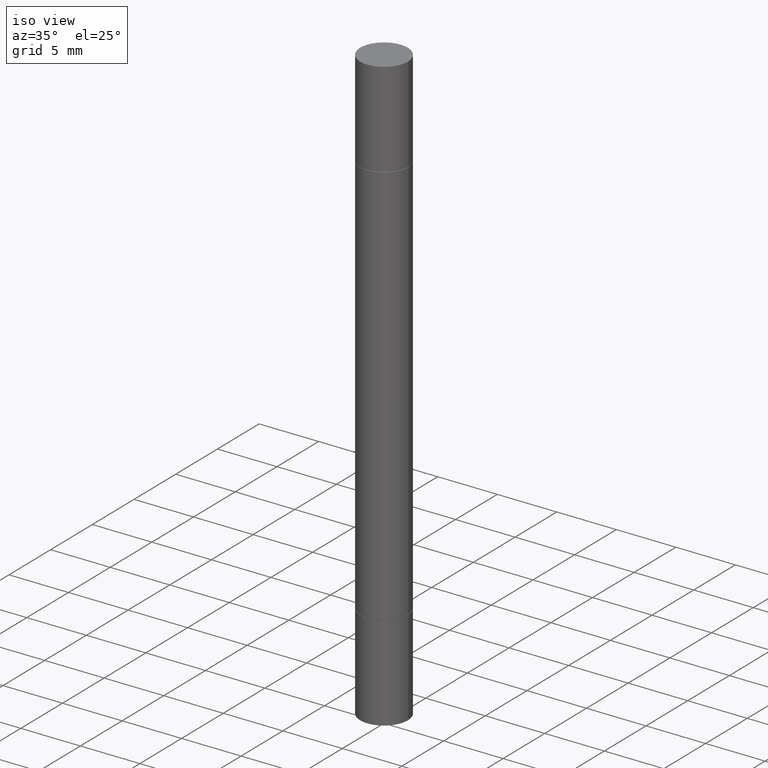
[diagram: clean part render]
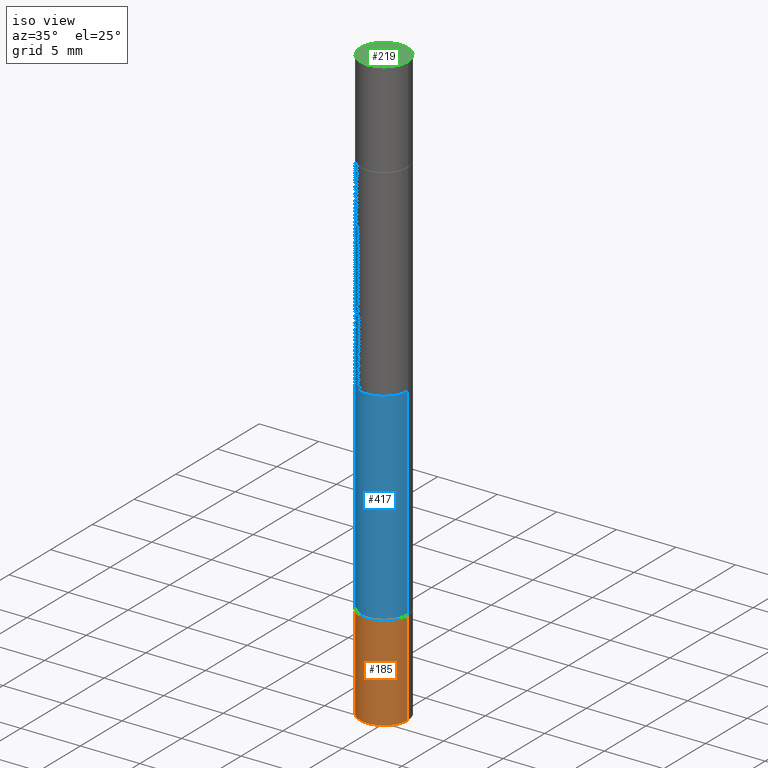
[diagram: same view with three faces highlighted in distinct colors, each labeled with its STEP entity id]
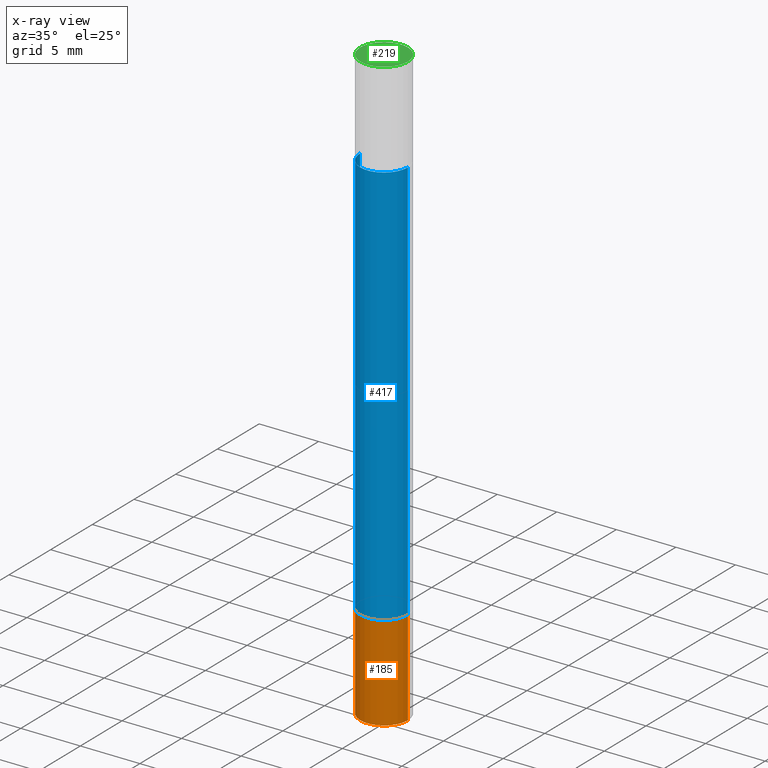
[diagram: x-ray of the same camera — body ghosted, the three highlighted faces saturated]
A machine part, iso view with three faces highlighted in distinct colors.
The next image is the same camera in x-ray (body ghosted, the three faces saturated) — at least one of them is partly hidden behind the body in this view.
Their STEP definitions:

[orange] entity #185 — the highlighted cylindrical surface (edge-blend (fillet) strip) has radius 2.0002 mm, axis along (-0, 0, 1).
#2 = CIRCLE ( 'NONE', #142, 0.07875000000000000056 ) ;
#28 = EDGE_LOOP ( 'NONE', ( #447, #532, #125, #76 ) ) ;
#35 = DIRECTION ( 'NONE',  ( -2.445468806185136597E-29, 3.491481338843145583E-15, 1.000000000000000000 ) ) ;
#62 = DIRECTION ( 'NONE',  ( -2.445468806185136597E-29, 3.491481338843145583E-15, 1.000000000000000000 ) ) ;
#76 = ORIENTED_EDGE ( 'NONE', *, *, #393, .F. ) ;
#107 = VERTEX_POINT ( 'NONE', #665 ) ;
#112 = DIRECTION ( 'NONE',  ( 1.000000000000000000, -6.982962677686265922E-15, 4.876176775795935232E-29 ) ) ;
#125 = ORIENTED_EDGE ( 'NONE', *, *, #444, .T. ) ;
#136 = LINE ( 'NONE', #510, #160 ) ;
#142 = AXIS2_PLACEMENT_3D ( 'NONE', #433, #62, #590 ) ;
#156 = EDGE_CURVE ( 'NONE', #437, #107, #554, .T. ) ;
#160 = VECTOR ( 'NONE', #287, 39.37007874015748143 ) ;
#185 = ADVANCED_FACE ( 'NONE', ( #316 ), #263, .T. ) ;
#195 = VERTEX_POINT ( 'NONE', #395 ) ;
#216 = DIRECTION ( 'NONE',  ( -2.445468806185136877E-29, 3.491481338843145188E-15, 1.000000000000000000 ) ) ;
#259 = CARTESIAN_POINT ( 'NONE',  ( -0.07875000000000000056, -5.763520300233858771E-15, -1.653499999999999970 ) ) ;
#263 = CYLINDRICAL_SURFACE ( 'NONE', #421, 0.07875000000000000056 ) ;
#287 = DIRECTION ( 'NONE',  ( -2.445468806185136877E-29, 3.491481338843145188E-15, 1.000000000000000000 ) ) ;
#316 = FACE_OUTER_BOUND ( 'NONE', #28, .T. ) ;
#324 = VERTEX_POINT ( 'NONE', #259 ) ;
#331 = CARTESIAN_POINT ( 'NONE',  ( -0.07875000000000000056, -5.763520300233858771E-15, -1.968500000000000139 ) ) ;
#368 = VECTOR ( 'NONE', #216, 39.37007874015748143 ) ;
#377 = CARTESIAN_POINT ( 'NONE',  ( 0.000000000000000000, 0.000000000000000000, 0.000000000000000000 ) ) ;
#393 = EDGE_CURVE ( 'NONE', #324, #195, #2, .T. ) ;
#395 = CARTESIAN_POINT ( 'NONE',  ( 0.07875000000000000056, -6.323072704644934417E-15, -1.653499999999999970 ) ) ;
#421 = AXIS2_PLACEMENT_3D ( 'NONE', #377, #526, #112 ) ;
#433 = CARTESIAN_POINT ( 'NONE',  ( 4.043582671027123201E-29, -5.773164393777141072E-15, -1.653499999999999970 ) ) ;
#437 = VERTEX_POINT ( 'NONE', #331 ) ;
#444 = EDGE_CURVE ( 'NONE', #107, #195, #531, .T. ) ;
#447 = ORIENTED_EDGE ( 'NONE', *, *, #519, .F. ) ;
#474 = CARTESIAN_POINT ( 'NONE',  ( 0.07875000000000000056, -5.499083108677934443E-16, 3.839989210939299016E-30 ) ) ;
#510 = CARTESIAN_POINT ( 'NONE',  ( -0.07875000000000000056, 5.595524044110789003E-16, -3.873661383575737792E-30 ) ) ;
#519 = EDGE_CURVE ( 'NONE', #437, #324, #136, .T. ) ;
#526 = DIRECTION ( 'NONE',  ( -2.445468806185136597E-29, 3.491481338843145583E-15, 1.000000000000000000 ) ) ;
#529 = DIRECTION ( 'NONE',  ( 1.000000000000000000, -6.982962677686261977E-15, 0.000000000000000000 ) ) ;
#531 = LINE ( 'NONE', #474, #368 ) ;
#532 = ORIENTED_EDGE ( 'NONE', *, *, #156, .T. ) ;
#554 = CIRCLE ( 'NONE', #566, 0.07875000000000000056 ) ;
#561 = CARTESIAN_POINT ( 'NONE',  ( 4.813905344975441835E-29, -6.872981015512731707E-15, -1.968500000000000139 ) ) ;
#566 = AXIS2_PLACEMENT_3D ( 'NONE', #561, #35, #529 ) ;
#590 = DIRECTION ( 'NONE',  ( 1.000000000000000000, -6.982962677686261977E-15, 0.000000000000000000 ) ) ;
#665 = CARTESIAN_POINT ( 'NONE',  ( 0.07875000000000000056, -7.422889326380525053E-15, -1.968500000000000139 ) ) ;

[blue] entity #417 — the highlighted cylindrical surface (edge-blend (fillet) strip) has radius 2.0002 mm, axis along (-0, -0, -1).
#3 = DIRECTION ( 'NONE',  ( -2.445468806185136597E-29, -3.492890411551752677E-15, -1.000000000000000000 ) ) ;
#11 = CARTESIAN_POINT ( 'NONE',  ( 0.000000000000000000, -6.874367895326177521E-15, -1.968499999999999694 ) ) ;
#17 = CARTESIAN_POINT ( 'NONE',  ( 0.07874999999999997280, -6.319581223306091410E-15, -1.652499999999999858 ) ) ;
#19 = ORIENTED_EDGE ( 'NONE', *, *, #376, .T. ) ;
#99 = EDGE_CURVE ( 'NONE', #555, #543, #453, .T. ) ;
#103 = VECTOR ( 'NONE', #536, 39.37007874015748143 ) ;
#108 = DIRECTION ( 'NONE',  ( 2.445468806185136597E-29, 3.492890411551752677E-15, 1.000000000000000000 ) ) ;
#117 = DIRECTION ( 'NONE',  ( 1.000000000000000000, -6.982962677686264344E-15, 0.000000000000000000 ) ) ;
#128 = CIRCLE ( 'NONE', #598, 0.07874999999999997280 ) ;
#175 = ORIENTED_EDGE ( 'NONE', *, *, #366, .F. ) ;
#179 = CYLINDRICAL_SURFACE ( 'NONE', #514, 0.07874999999999987566 ) ;
#198 = AXIS2_PLACEMENT_3D ( 'NONE', #488, #108, #385 ) ;
#220 = CARTESIAN_POINT ( 'NONE',  ( 4.041137202220937598E-29, -5.769672912438298064E-15, -1.652499999999999858 ) ) ;
#223 = DIRECTION ( 'NONE',  ( 1.000000000000000000, -6.982962677686273021E-15, 0.000000000000000000 ) ) ;
#231 = CIRCLE ( 'NONE', #198, 0.07874999999999997280 ) ;
#240 = VERTEX_POINT ( 'NONE', #672 ) ;
#283 = ORIENTED_EDGE ( 'NONE', *, *, #99, .F. ) ;
#308 = DIRECTION ( 'NONE',  ( -2.445468806185136877E-29, -3.492890411551753071E-15, -1.000000000000000000 ) ) ;
#366 = EDGE_CURVE ( 'NONE', #240, #555, #231, .T. ) ;
#375 = FACE_OUTER_BOUND ( 'NONE', #443, .T. ) ;
#376 = EDGE_CURVE ( 'NONE', #240, #495, #428, .T. ) ;
#385 = DIRECTION ( 'NONE',  ( 1.000000000000000000, -6.982962677686267499E-15, 0.000000000000000000 ) ) ;
#399 = EDGE_CURVE ( 'NONE', #495, #543, #128, .T. ) ;
#407 = CARTESIAN_POINT ( 'NONE',  ( 0.07874999999999987566, -7.424276206193971655E-15, -1.968499999999999694 ) ) ;
#417 = ADVANCED_FACE ( 'NONE', ( #375 ), #179, .T. ) ;
#428 = LINE ( 'NONE', #476, #103 ) ;
#441 = ORIENTED_EDGE ( 'NONE', *, *, #399, .T. ) ;
#443 = EDGE_LOOP ( 'NONE', ( #175, #19, #441, #283 ) ) ;
#445 = CARTESIAN_POINT ( 'NONE',  ( -0.07874999999999997280, -2.896226290431854020E-15, -1.652499999999999858 ) ) ;
#453 = LINE ( 'NONE', #407, #610 ) ;
#476 = CARTESIAN_POINT ( 'NONE',  ( -0.07874999999999987566, -6.334103678001671209E-15, -1.968499999999999694 ) ) ;
#488 = CARTESIAN_POINT ( 'NONE',  ( 4.041137202220937598E-29, -1.102366490236907793E-15, -0.3159999999999998366 ) ) ;
#495 = VERTEX_POINT ( 'NONE', #445 ) ;
#514 = AXIS2_PLACEMENT_3D ( 'NONE', #11, #3, #223 ) ;
#535 = DIRECTION ( 'NONE',  ( -2.445468806185136597E-29, 3.491481338843145583E-15, 1.000000000000000000 ) ) ;
#536 = DIRECTION ( 'NONE',  ( -2.445468806185136877E-29, -3.492890411551753071E-15, -1.000000000000000000 ) ) ;
#543 = VERTEX_POINT ( 'NONE', #17 ) ;
#555 = VERTEX_POINT ( 'NONE', #605 ) ;
#598 = AXIS2_PLACEMENT_3D ( 'NONE', #220, #535, #117 ) ;
#605 = CARTESIAN_POINT ( 'NONE',  ( 0.07874999999999997280, -1.652274801104699758E-15, -0.3159999999999998366 ) ) ;
#610 = VECTOR ( 'NONE', #308, 39.37007874015748143 ) ;
#672 = CARTESIAN_POINT ( 'NONE',  ( -0.07874999999999997280, -5.621022729123983254E-16, -0.3159999999999998366 ) ) ;

[green] entity #219 — the highlighted planar face has unit normal (0, 0, 1).
#33 = VERTEX_POINT ( 'NONE', #655 ) ;
#34 = CARTESIAN_POINT ( 'NONE',  ( 4.813905344975441835E-29, 1.386879813447681415E-18, 2.731847993664263218E-16 ) ) ;
#57 = AXIS2_PLACEMENT_3D ( 'NONE', #34, #545, #246 ) ;
#82 = DIRECTION ( 'NONE',  ( 1.000000000000000000, -6.982962677686265922E-15, 0.000000000000000000 ) ) ;
#89 = EDGE_LOOP ( 'NONE', ( #600, #131 ) ) ;
#131 = ORIENTED_EDGE ( 'NONE', *, *, #537, .T. ) ;
#141 = AXIS2_PLACEMENT_3D ( 'NONE', #251, #364, #254 ) ;
#207 = CIRCLE ( 'NONE', #455, 0.07875000000000000056 ) ;
#219 = ADVANCED_FACE ( 'NONE', ( #465 ), #517, .T. ) ;
#239 = VERTEX_POINT ( 'NONE', #513 ) ;
#246 = DIRECTION ( 'NONE',  ( 1.000000000000000000, -6.982962677686265922E-15, 0.000000000000000000 ) ) ;
#251 = CARTESIAN_POINT ( 'NONE',  ( 5.499083108678415648E-16, 0.07874999999999997280, 0.000000000000000000 ) ) ;
#254 = DIRECTION ( 'NONE',  ( -1.000000000000000000, 6.982962677686265922E-15, -9.839502134516470631E-33 ) ) ;
#284 = DIRECTION ( 'NONE',  ( 2.445468806185136597E-29, 3.492890411551752677E-15, 1.000000000000000000 ) ) ;
#364 = DIRECTION ( 'NONE',  ( 2.438088387897959769E-29, 3.492890411551753071E-15, 1.000000000000000000 ) ) ;
#455 = AXIS2_PLACEMENT_3D ( 'NONE', #596, #284, #82 ) ;
#465 = FACE_OUTER_BOUND ( 'NONE', #89, .T. ) ;
#496 = EDGE_CURVE ( 'NONE', #33, #239, #207, .T. ) ;
#513 = CARTESIAN_POINT ( 'NONE',  ( -0.07875000000000000056, -8.479142681445664027E-18, 2.731847993664282447E-16 ) ) ;
#517 = PLANE ( 'NONE',  #141 ) ;
#537 = EDGE_CURVE ( 'NONE', #239, #33, #542, .T. ) ;
#542 = CIRCLE ( 'NONE', #57, 0.07875000000000000056 ) ;
#545 = DIRECTION ( 'NONE',  ( 2.445468806185136597E-29, 3.492890411551752677E-15, 1.000000000000000000 ) ) ;
#596 = CARTESIAN_POINT ( 'NONE',  ( 4.813905344975441835E-29, 1.386879813447681415E-18, 2.731847993664263218E-16 ) ) ;
#600 = ORIENTED_EDGE ( 'NONE', *, *, #496, .T. ) ;
#655 = CARTESIAN_POINT ( 'NONE',  ( 0.07875000000000000056, -5.485214310543458561E-16, 2.731847993664263218E-16 ) ) ;